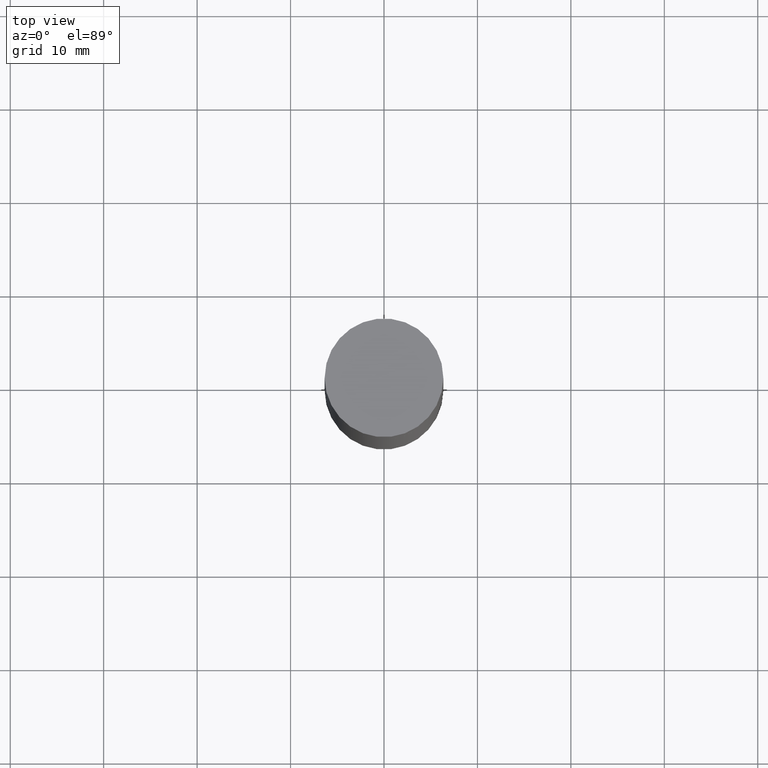
[diagram: clean part render]
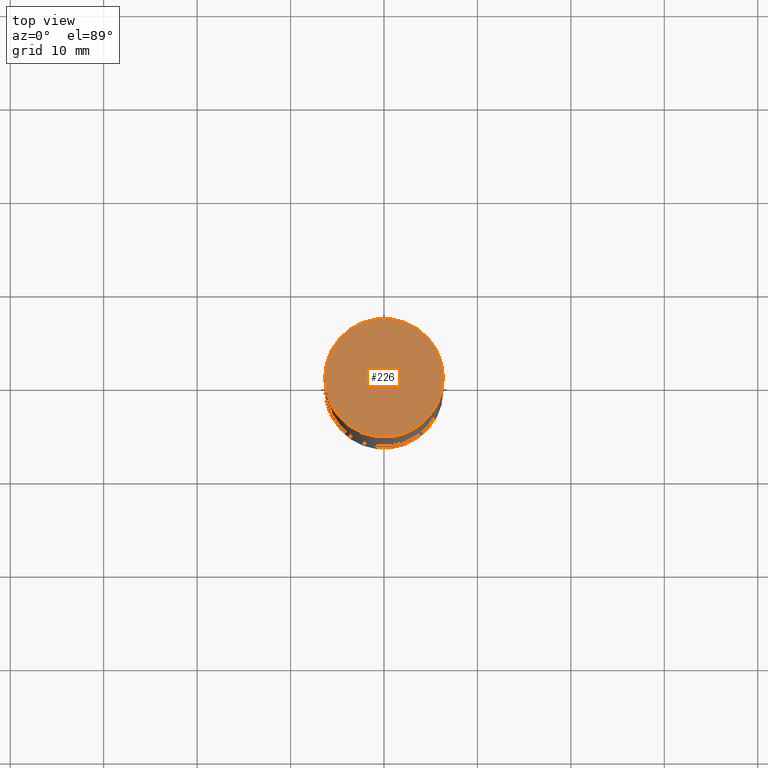
[diagram: same view with one face highlighted and labeled with its STEP entity id]
A machine part, top view. The second image highlights one B-rep face of the part: STEP entity #226.
In plain terms, the highlighted planar face has unit normal (0, 0, 1).
Its self-contained STEP definition (entity closure, byte-faithful):
#42 = CIRCLE ( 'NONE', #201, 0.2500000000000000000 ) ;
#45 = DIRECTION ( 'NONE',  ( 2.445468806185136597E-29, 3.492890411551752677E-15, 1.000000000000000000 ) ) ;
#48 = AXIS2_PLACEMENT_3D ( 'NONE', #633, #468, #314 ) ;
#100 = FACE_OUTER_BOUND ( 'NONE', #474, .T. ) ;
#102 = CARTESIAN_POINT ( 'NONE',  ( 0.2500000000000000000, -1.743627060358652092E-15, 1.092739197465705287E-15 ) ) ;
#201 = AXIS2_PLACEMENT_3D ( 'NONE', #361, #376, #575 ) ;
#226 = ADVANCED_FACE ( 'NONE', ( #100 ), #628, .T. ) ;
#275 = CARTESIAN_POINT ( 'NONE',  ( 7.336406418555409790E-29, 2.113609062914567177E-18, 1.092739197465705287E-15 ) ) ;
#301 = CIRCLE ( 'NONE', #415, 0.2500000000000000000 ) ;
#306 = VERTEX_POINT ( 'NONE', #543 ) ;
#314 = DIRECTION ( 'NONE',  ( -1.000000000000000000, 6.982962677686265922E-15, -9.839502134516470631E-33 ) ) ;
#361 = CARTESIAN_POINT ( 'NONE',  ( 7.336406418555409790E-29, 2.113609062914567177E-18, 1.092739197465705287E-15 ) ) ;
#376 = DIRECTION ( 'NONE',  ( 2.445468806185136597E-29, 3.492890411551752677E-15, 1.000000000000000000 ) ) ;
#404 = EDGE_CURVE ( 'NONE', #306, #408, #42, .T. ) ;
#408 = VERTEX_POINT ( 'NONE', #102 ) ;
#415 = AXIS2_PLACEMENT_3D ( 'NONE', #275, #45, #423 ) ;
#419 = ORIENTED_EDGE ( 'NONE', *, *, #404, .T. ) ;
#423 = DIRECTION ( 'NONE',  ( 1.000000000000000000, -6.982962677686266711E-15, 0.000000000000000000 ) ) ;
#457 = EDGE_CURVE ( 'NONE', #408, #306, #301, .T. ) ;
#468 = DIRECTION ( 'NONE',  ( 2.438088387897959769E-29, 3.492890411551753071E-15, 1.000000000000000000 ) ) ;
#474 = EDGE_LOOP ( 'NONE', ( #588, #419 ) ) ;
#543 = CARTESIAN_POINT ( 'NONE',  ( -0.2500000000000000000, 6.257098548958748880E-16, 1.092739197465709232E-15 ) ) ;
#575 = DIRECTION ( 'NONE',  ( 1.000000000000000000, -6.982962677686266711E-15, 0.000000000000000000 ) ) ;
#588 = ORIENTED_EDGE ( 'NONE', *, *, #457, .T. ) ;
#628 = PLANE ( 'NONE',  #48 ) ;
#633 = CARTESIAN_POINT ( 'NONE',  ( 1.745740669421639647E-15, 0.2500000000000000000, 5.463695987328526437E-16 ) ) ;